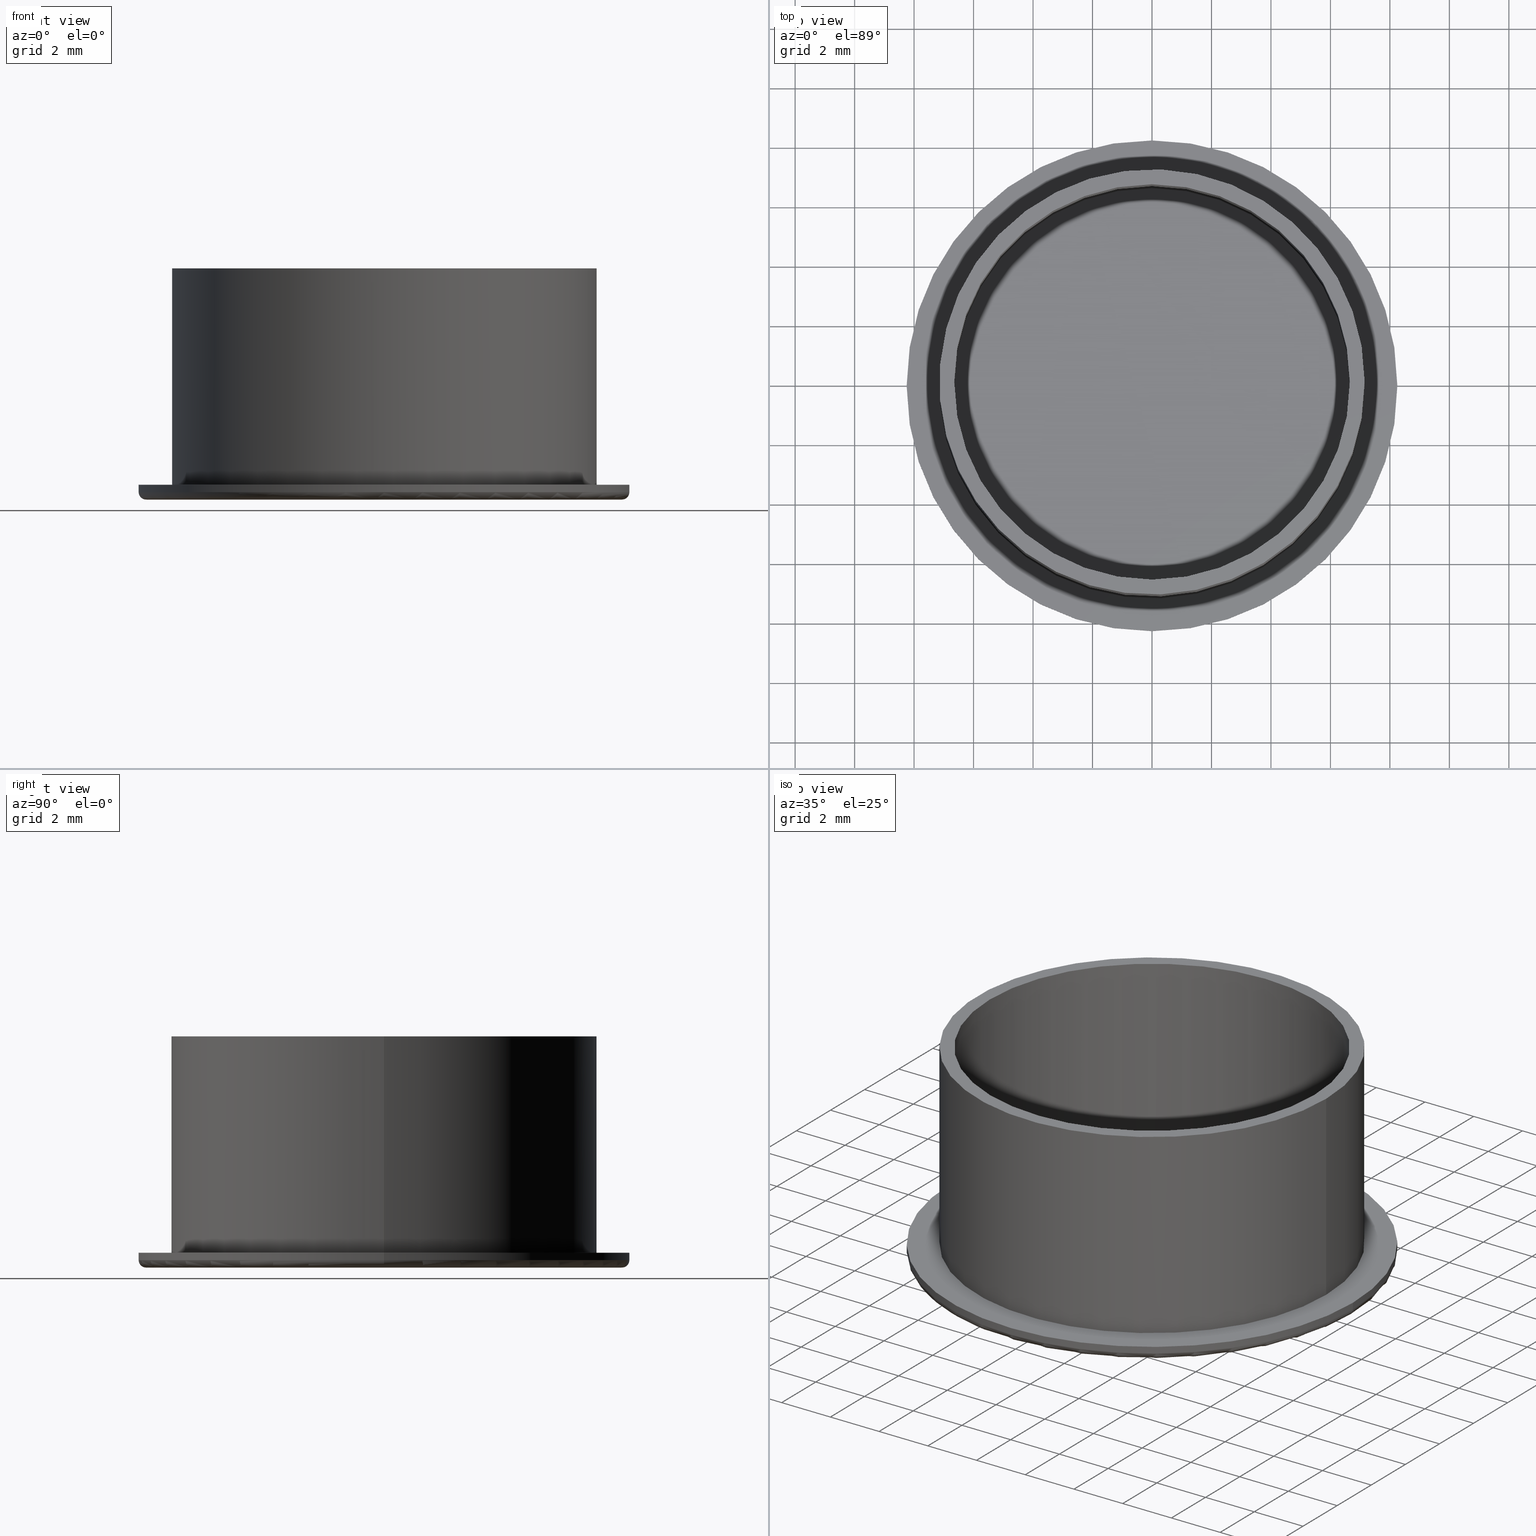
[diagram: canonical four-view strip — front | top / right | iso, engineering-drawing reading convention]
A machine part, canonical four-view strip (front | top / right | iso — engineering-drawing reading convention). The complete STEP part file that produces these views, byte-faithful:
ISO-10303-21;
HEADER;
/* Generated by software containing ST-Developer
 * from STEP Tools, Inc. (www.steptools.com) 
 */

FILE_DESCRIPTION(
/* description */ ('TAPPO COPRIFORO 14.3 TFLN NERO '),
/* implementation_level */ '2;1');

FILE_NAME(
/* name */ 'C:\\Users\\tecnico7\\Desktop\\CTPTF0000010.stp',
/* time_stamp */ '2022-07-07T15:39:40+02:00',
/* author */ ('tecnico7'),
/* organization */ (''),
/* preprocessor_version */ 'ST-DEVELOPER v18.1',
/* originating_system */ 'Autodesk Inventor 2022',
/* authorisation */ '');

FILE_SCHEMA (('AUTOMOTIVE_DESIGN { 1 0 10303 214 3 1 1 }'));
ENDSEC;

DATA;
#10=MECHANICAL_DESIGN_GEOMETRIC_PRESENTATION_REPRESENTATION('',(#13),#211);
#11=SHAPE_REPRESENTATION_RELATIONSHIP('SRR','None',#218,#12);
#12=ADVANCED_BREP_SHAPE_REPRESENTATION('',(#14),#210);
#13=STYLED_ITEM('',(#227),#14);
#14=MANIFOLD_SOLID_BREP('Solido1',#105);
#15=FACE_BOUND('',#44,.T.);
#16=FACE_BOUND('',#46,.T.);
#17=PLANE('',#134);
#18=PLANE('',#141);
#19=PLANE('',#142);
#20=PLANE('',#143);
#21=LINE('',#191,#24);
#22=LINE('',#197,#25);
#23=LINE('',#203,#26);
#24=VECTOR('',#158,8.25);
#25=VECTOR('',#165,6.65);
#26=VECTOR('',#172,7.15);
#27=CYLINDRICAL_SURFACE('',#132,8.25);
#28=CYLINDRICAL_SURFACE('',#135,6.65);
#29=CYLINDRICAL_SURFACE('',#138,7.15);
#30=FACE_OUTER_BOUND('',#38,.T.);
#31=FACE_OUTER_BOUND('',#39,.T.);
#32=FACE_OUTER_BOUND('',#40,.T.);
#33=FACE_OUTER_BOUND('',#41,.T.);
#34=FACE_OUTER_BOUND('',#42,.T.);
#35=FACE_OUTER_BOUND('',#43,.T.);
#36=FACE_OUTER_BOUND('',#45,.T.);
#37=FACE_OUTER_BOUND('',#47,.T.);
#38=EDGE_LOOP('',(#74,#75,#76,#77));
#39=EDGE_LOOP('',(#78,#79,#80,#81));
#40=EDGE_LOOP('',(#82));
#41=EDGE_LOOP('',(#83,#84,#85,#86));
#42=EDGE_LOOP('',(#87,#88,#89,#90));
#43=EDGE_LOOP('',(#91));
#44=EDGE_LOOP('',(#92));
#45=EDGE_LOOP('',(#93));
#46=EDGE_LOOP('',(#94));
#47=EDGE_LOOP('',(#95));
#48=CIRCLE('',#129,8.);
#49=CIRCLE('',#130,0.25);
#50=CIRCLE('',#131,8.25);
#51=CIRCLE('',#133,8.25);
#52=CIRCLE('',#136,6.65);
#53=CIRCLE('',#137,6.65);
#54=CIRCLE('',#139,7.15);
#55=CIRCLE('',#140,7.15);
#56=VERTEX_POINT('',#183);
#57=VERTEX_POINT('',#185);
#58=VERTEX_POINT('',#189);
#59=VERTEX_POINT('',#194);
#60=VERTEX_POINT('',#196);
#61=VERTEX_POINT('',#200);
#62=VERTEX_POINT('',#202);
#63=EDGE_CURVE('',#56,#56,#48,.T.);
#64=EDGE_CURVE('',#56,#57,#49,.T.);
#65=EDGE_CURVE('',#57,#57,#50,.T.);
#66=EDGE_CURVE('',#58,#58,#51,.T.);
#67=EDGE_CURVE('',#58,#57,#21,.T.);
#68=EDGE_CURVE('',#59,#59,#52,.T.);
#69=EDGE_CURVE('',#59,#60,#22,.T.);
#70=EDGE_CURVE('',#60,#60,#53,.T.);
#71=EDGE_CURVE('',#61,#61,#54,.T.);
#72=EDGE_CURVE('',#61,#62,#23,.T.);
#73=EDGE_CURVE('',#62,#62,#55,.T.);
#74=ORIENTED_EDGE('',*,*,#63,.T.);
#75=ORIENTED_EDGE('',*,*,#64,.T.);
#76=ORIENTED_EDGE('',*,*,#65,.T.);
#77=ORIENTED_EDGE('',*,*,#64,.F.);
#78=ORIENTED_EDGE('',*,*,#66,.F.);
#79=ORIENTED_EDGE('',*,*,#67,.T.);
#80=ORIENTED_EDGE('',*,*,#65,.F.);
#81=ORIENTED_EDGE('',*,*,#67,.F.);
#82=ORIENTED_EDGE('',*,*,#63,.F.);
#83=ORIENTED_EDGE('',*,*,#68,.F.);
#84=ORIENTED_EDGE('',*,*,#69,.T.);
#85=ORIENTED_EDGE('',*,*,#70,.F.);
#86=ORIENTED_EDGE('',*,*,#69,.F.);
#87=ORIENTED_EDGE('',*,*,#71,.F.);
#88=ORIENTED_EDGE('',*,*,#72,.T.);
#89=ORIENTED_EDGE('',*,*,#73,.F.);
#90=ORIENTED_EDGE('',*,*,#72,.F.);
#91=ORIENTED_EDGE('',*,*,#71,.T.);
#92=ORIENTED_EDGE('',*,*,#70,.T.);
#93=ORIENTED_EDGE('',*,*,#66,.T.);
#94=ORIENTED_EDGE('',*,*,#73,.T.);
#95=ORIENTED_EDGE('',*,*,#68,.T.);
#96=TOROIDAL_SURFACE('',#128,8.,0.25);
#97=ADVANCED_FACE('',(#30),#96,.T.);
#98=ADVANCED_FACE('',(#31),#27,.T.);
#99=ADVANCED_FACE('',(#32),#17,.F.);
#100=ADVANCED_FACE('',(#33),#28,.F.);
#101=ADVANCED_FACE('',(#34),#29,.T.);
#102=ADVANCED_FACE('',(#35,#15),#18,.T.);
#103=ADVANCED_FACE('',(#36,#16),#19,.T.);
#104=ADVANCED_FACE('',(#37),#20,.T.);
#105=CLOSED_SHELL('',(#97,#98,#99,#100,#101,#102,#103,#104));
#106=DERIVED_UNIT_ELEMENT(#109,1.);
#107=DERIVED_UNIT_ELEMENT(#213,-3.);
#108=DIMENSIONAL_EXPONENTS(1.,0.,0.,0.,0.,0.,0.);
#109=(
CONVERSION_BASED_UNIT('gram',#111)
MASS_UNIT()
NAMED_UNIT(#108)
);
#110=(
MASS_UNIT()
NAMED_UNIT(*)
SI_UNIT(.KILO.,.GRAM.)
);
#111=MASS_MEASURE_WITH_UNIT(MASS_MEASURE(0.001),#110);
#112=DERIVED_UNIT((#106,#107));
#113=MEASURE_REPRESENTATION_ITEM('density measure',
POSITIVE_RATIO_MEASURE(1.13),#112);
#114=PROPERTY_DEFINITION_REPRESENTATION(#119,#116);
#115=PROPERTY_DEFINITION_REPRESENTATION(#120,#117);
#116=REPRESENTATION('material name',(#118),#210);
#117=REPRESENTATION('density',(#113),#210);
#118=DESCRIPTIVE_REPRESENTATION_ITEM('NYLON','NYLON');
#119=PROPERTY_DEFINITION('material property','material name',#220);
#120=PROPERTY_DEFINITION('material property','density of part',#220);
#121=DATE_TIME_ROLE('creation_date');
#122=APPLIED_DATE_AND_TIME_ASSIGNMENT(#123,#121,(#220));
#123=DATE_AND_TIME(#124,#125);
#124=CALENDAR_DATE(2020,9,7);
#125=LOCAL_TIME(0,0,0.,#126);
#126=COORDINATED_UNIVERSAL_TIME_OFFSET(0,0,.BEHIND.);
#127=AXIS2_PLACEMENT_3D('placement',#181,#144,#145);
#128=AXIS2_PLACEMENT_3D('',#182,#146,#147);
#129=AXIS2_PLACEMENT_3D('',#184,#148,#149);
#130=AXIS2_PLACEMENT_3D('',#186,#150,#151);
#131=AXIS2_PLACEMENT_3D('',#187,#152,#153);
#132=AXIS2_PLACEMENT_3D('',#188,#154,#155);
#133=AXIS2_PLACEMENT_3D('',#190,#156,#157);
#134=AXIS2_PLACEMENT_3D('',#192,#159,#160);
#135=AXIS2_PLACEMENT_3D('',#193,#161,#162);
#136=AXIS2_PLACEMENT_3D('',#195,#163,#164);
#137=AXIS2_PLACEMENT_3D('',#198,#166,#167);
#138=AXIS2_PLACEMENT_3D('',#199,#168,#169);
#139=AXIS2_PLACEMENT_3D('',#201,#170,#171);
#140=AXIS2_PLACEMENT_3D('',#204,#173,#174);
#141=AXIS2_PLACEMENT_3D('',#205,#175,#176);
#142=AXIS2_PLACEMENT_3D('',#206,#177,#178);
#143=AXIS2_PLACEMENT_3D('',#207,#179,#180);
#144=DIRECTION('axis',(0.,0.,1.));
#145=DIRECTION('refdir',(1.,0.,0.));
#146=DIRECTION('center_axis',(0.,0.,-1.));
#147=DIRECTION('ref_axis',(-1.,0.,0.));
#148=DIRECTION('center_axis',(0.,0.,1.));
#149=DIRECTION('ref_axis',(-1.,0.,0.));
#150=DIRECTION('center_axis',(-1.22464679914735E-16,-1.,0.));
#151=DIRECTION('ref_axis',(1.,-1.22464679914735E-16,0.));
#152=DIRECTION('center_axis',(0.,0.,-1.));
#153=DIRECTION('ref_axis',(-1.,0.,0.));
#154=DIRECTION('center_axis',(0.,0.,1.));
#155=DIRECTION('ref_axis',(-1.,0.,0.));
#156=DIRECTION('center_axis',(0.,0.,1.));
#157=DIRECTION('ref_axis',(-1.,0.,0.));
#158=DIRECTION('',(0.,0.,-1.));
#159=DIRECTION('center_axis',(0.,0.,1.));
#160=DIRECTION('ref_axis',(1.,0.,0.));
#161=DIRECTION('center_axis',(0.,0.,1.));
#162=DIRECTION('ref_axis',(-1.,0.,0.));
#163=DIRECTION('center_axis',(0.,0.,1.));
#164=DIRECTION('ref_axis',(-1.,0.,0.));
#165=DIRECTION('',(0.,0.,1.));
#166=DIRECTION('center_axis',(0.,0.,-1.));
#167=DIRECTION('ref_axis',(-1.,0.,0.));
#168=DIRECTION('center_axis',(0.,0.,1.));
#169=DIRECTION('ref_axis',(-1.,0.,0.));
#170=DIRECTION('center_axis',(0.,0.,1.));
#171=DIRECTION('ref_axis',(-1.,0.,0.));
#172=DIRECTION('',(0.,0.,-1.));
#173=DIRECTION('center_axis',(0.,0.,-1.));
#174=DIRECTION('ref_axis',(-1.,0.,0.));
#175=DIRECTION('center_axis',(0.,0.,1.));
#176=DIRECTION('ref_axis',(1.,0.,0.));
#177=DIRECTION('center_axis',(0.,0.,1.));
#178=DIRECTION('ref_axis',(1.,0.,0.));
#179=DIRECTION('center_axis',(0.,0.,1.));
#180=DIRECTION('ref_axis',(1.,0.,0.));
#181=CARTESIAN_POINT('',(0.,0.,0.));
#182=CARTESIAN_POINT('Origin',(0.,0.,0.25));
#183=CARTESIAN_POINT('',(8.,9.79717439317883E-16,0.));
#184=CARTESIAN_POINT('Origin',(0.,0.,0.));
#185=CARTESIAN_POINT('',(8.25,-1.01033360929657E-15,0.25));
#186=CARTESIAN_POINT('Origin',(8.,-9.79717439317883E-16,0.25));
#187=CARTESIAN_POINT('Origin',(0.,0.,0.25));
#188=CARTESIAN_POINT('Origin',(0.,0.,0.));
#189=CARTESIAN_POINT('',(8.25,1.01033360929657E-15,0.5));
#190=CARTESIAN_POINT('Origin',(0.,0.,0.5));
#191=CARTESIAN_POINT('',(8.25,1.01033360929657E-15,0.));
#192=CARTESIAN_POINT('Origin',(-5.32769426885888E-16,0.,0.));
#193=CARTESIAN_POINT('Origin',(0.,0.,0.5));
#194=CARTESIAN_POINT('',(6.65,8.1439012143299E-16,0.5));
#195=CARTESIAN_POINT('Origin',(0.,0.,0.5));
#196=CARTESIAN_POINT('',(6.65,8.1439012143299E-16,7.772));
#197=CARTESIAN_POINT('',(6.65,8.1439012143299E-16,0.5));
#198=CARTESIAN_POINT('Origin',(0.,0.,7.772));
#199=CARTESIAN_POINT('Origin',(0.,0.,0.5));
#200=CARTESIAN_POINT('',(7.15,8.75622461390358E-16,7.772));
#201=CARTESIAN_POINT('Origin',(0.,0.,7.772));
#202=CARTESIAN_POINT('',(7.15,8.75622461390358E-16,0.5));
#203=CARTESIAN_POINT('',(7.15,8.75622461390358E-16,0.5));
#204=CARTESIAN_POINT('Origin',(0.,0.,0.5));
#205=CARTESIAN_POINT('Origin',(-5.90555030115936E-16,0.,7.772));
#206=CARTESIAN_POINT('Origin',(-5.32769426885888E-16,0.,0.5));
#207=CARTESIAN_POINT('Origin',(-5.32769426885888E-16,0.,0.5));
#208=UNCERTAINTY_MEASURE_WITH_UNIT(LENGTH_MEASURE(0.01),#212,
'DISTANCE_ACCURACY_VALUE',
'Maximum model space distance between geometric entities at asserted c
onnectivities');
#209=UNCERTAINTY_MEASURE_WITH_UNIT(LENGTH_MEASURE(0.01),#212,
'DISTANCE_ACCURACY_VALUE',
'Maximum model space distance between geometric entities at asserted c
onnectivities');
#210=(
GEOMETRIC_REPRESENTATION_CONTEXT(3)
GLOBAL_UNCERTAINTY_ASSIGNED_CONTEXT((#208))
GLOBAL_UNIT_ASSIGNED_CONTEXT((#212,#214,#215))
REPRESENTATION_CONTEXT('','3D')
);
#211=(
GEOMETRIC_REPRESENTATION_CONTEXT(3)
GLOBAL_UNCERTAINTY_ASSIGNED_CONTEXT((#209))
GLOBAL_UNIT_ASSIGNED_CONTEXT((#212,#214,#215))
REPRESENTATION_CONTEXT('','3D')
);
#212=(
LENGTH_UNIT()
NAMED_UNIT(*)
SI_UNIT(.MILLI.,.METRE.)
);
#213=(
LENGTH_UNIT()
NAMED_UNIT(*)
SI_UNIT(.CENTI.,.METRE.)
);
#214=(
NAMED_UNIT(*)
PLANE_ANGLE_UNIT()
SI_UNIT($,.RADIAN.)
);
#215=(
NAMED_UNIT(*)
SI_UNIT($,.STERADIAN.)
SOLID_ANGLE_UNIT()
);
#216=SHAPE_DEFINITION_REPRESENTATION(#217,#218);
#217=PRODUCT_DEFINITION_SHAPE('',$,#220);
#218=SHAPE_REPRESENTATION('',(#127),#210);
#219=PRODUCT_DEFINITION_CONTEXT('part definition',#224,'design');
#220=PRODUCT_DEFINITION('CTPTF0000010','CTPTF0000010',#221,#219);
#221=PRODUCT_DEFINITION_FORMATION('A',$,#226);
#222=PRODUCT_RELATED_PRODUCT_CATEGORY('CTPTF0000010','CTPTF0000010',(#226));
#223=APPLICATION_PROTOCOL_DEFINITION('international standard',
'automotive_design',2009,#224);
#224=APPLICATION_CONTEXT(
'Core Data for Automotive Mechanical Design Process');
#225=PRODUCT_CONTEXT('part definition',#224,'mechanical');
#226=PRODUCT('CTPTF0000010','CTPTF0000010',
'TAPPO COPRIFORO 14.3 TFLN NERO ',(#225));
#227=PRESENTATION_STYLE_ASSIGNMENT((#228));
#228=SURFACE_STYLE_USAGE(.BOTH.,#231);
#229=SURFACE_STYLE_RENDERING_WITH_PROPERTIES($,#235,(#230));
#230=SURFACE_STYLE_TRANSPARENT(0.);
#231=SURFACE_SIDE_STYLE('',(#232,#229));
#232=SURFACE_STYLE_FILL_AREA(#233);
#233=FILL_AREA_STYLE('',(#234));
#234=FILL_AREA_STYLE_COLOUR('',#235);
#235=COLOUR_RGB('',0.16078431372549,0.16078431372549,0.16078431372549);
ENDSEC;
END-ISO-10303-21;
